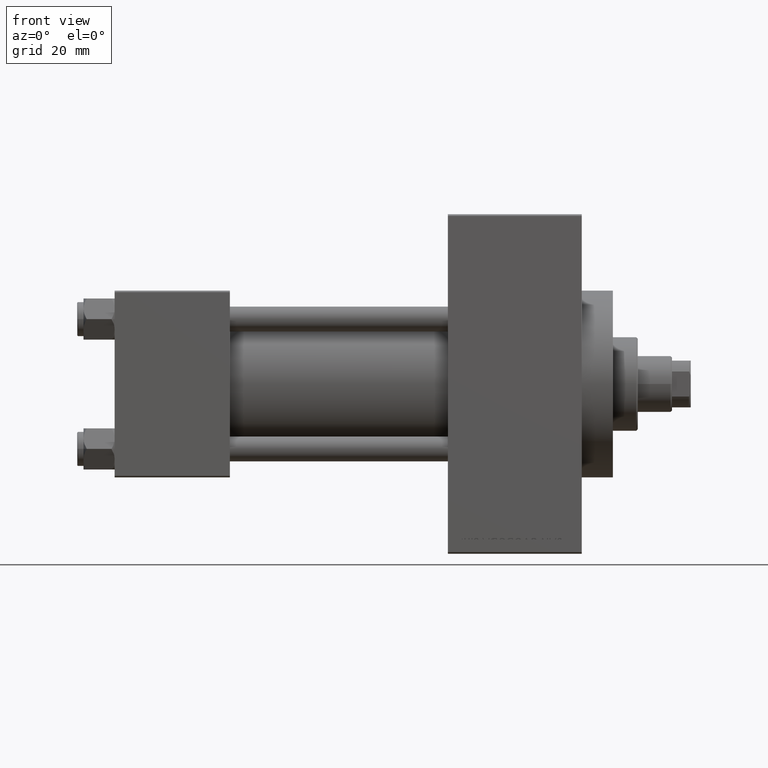
[diagram: clean part render]
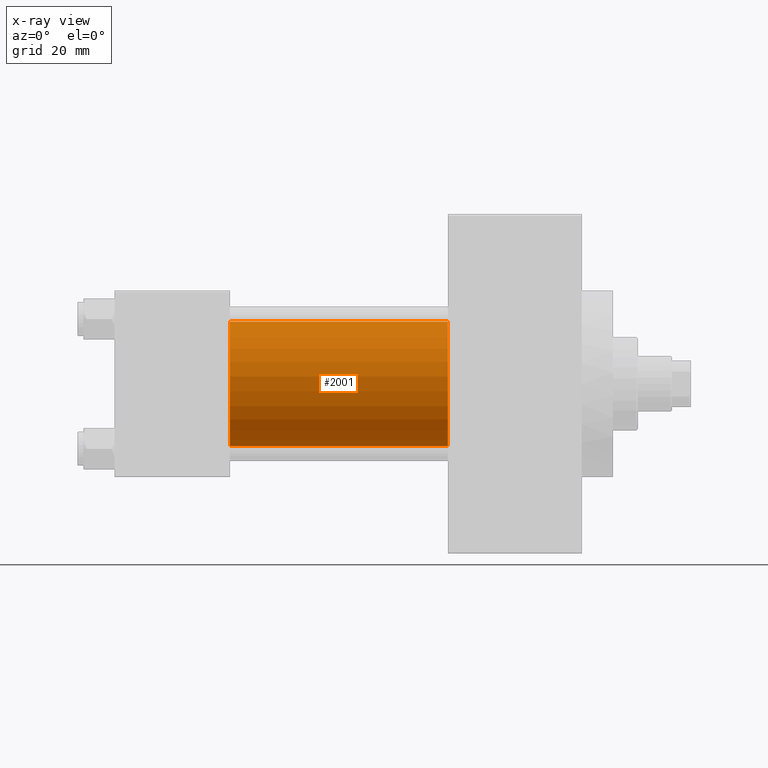
[diagram: x-ray — body ghosted, one internal face saturated and labeled with its STEP entity id]
A machine part, front view, then the same camera in x-ray: the body is ghosted and one INTERNAL B-rep face — a face not visible from any outside direction — is saturated and labeled: STEP entity #2001.
In plain terms, the highlighted cylindrical surface (partial cylindrical patch) has radius 20 mm, axis along (-1, -0, -0).
Its self-contained STEP definition (entity closure, byte-faithful):
#605 = LINE ( 'NONE', #42978, #48116 ) ;
#1467 = VERTEX_POINT ( 'NONE', #45020 ) ;
#2001 = ADVANCED_FACE ( 'NONE', ( #35792 ), #4418, .F. ) ;
#4166 = CARTESIAN_POINT ( 'NONE',  ( 37.00000000000000000, -2.602085213965210642E-15, 20.00000000000000000 ) ) ;
#4418 = CYLINDRICAL_SURFACE ( 'NONE', #6256, 20.00000000000000000 ) ;
#4633 = CIRCLE ( 'NONE', #32477, 20.00000000000000000 ) ;
#4930 = EDGE_CURVE ( 'NONE', #47149, #1467, #4633, .T. ) ;
#5386 = DIRECTION ( 'NONE',  ( -1.000000000000000000, -0.000000000000000000, -0.000000000000000000 ) ) ;
#6256 = AXIS2_PLACEMENT_3D ( 'NONE', #20595, #5386, #12887 ) ;
#8621 = EDGE_CURVE ( 'NONE', #18768, #1467, #34725, .T. ) ;
#9886 = DIRECTION ( 'NONE',  ( 1.000000000000000000, 0.000000000000000000, 0.000000000000000000 ) ) ;
#11808 = DIRECTION ( 'NONE',  ( -1.000000000000000000, -0.000000000000000000, -0.000000000000000000 ) ) ;
#12887 = DIRECTION ( 'NONE',  ( 0.000000000000000000, 0.000000000000000000, 1.000000000000000000 ) ) ;
#18768 = VERTEX_POINT ( 'NONE', #33692 ) ;
#20595 = CARTESIAN_POINT ( 'NONE',  ( 107.0000000000000142, -2.602085213965210642E-15, 0.000000000000000000 ) ) ;
#20930 = DIRECTION ( 'NONE',  ( 1.000000000000000000, 0.000000000000000000, 0.000000000000000000 ) ) ;
#32063 = VECTOR ( 'NONE', #11808, 1000.000000000000000 ) ;
#32216 = CARTESIAN_POINT ( 'NONE',  ( 107.0000000000000142, -2.602085213965210642E-15, 20.00000000000000000 ) ) ;
#32477 = AXIS2_PLACEMENT_3D ( 'NONE', #35645, #20930, #36131 ) ;
#32568 = CARTESIAN_POINT ( 'NONE',  ( 107.0000000000000142, -2.602085213965210642E-15, 0.000000000000000000 ) ) ;
#33559 = EDGE_CURVE ( 'NONE', #37174, #18768, #35900, .T. ) ;
#33692 = CARTESIAN_POINT ( 'NONE',  ( 107.0000000000000142, -1.527916156705042519E-16, -20.00000000000000000 ) ) ;
#34725 = LINE ( 'NONE', #42716, #32063 ) ;
#35126 = ORIENTED_EDGE ( 'NONE', *, *, #46243, .F. ) ;
#35236 = DIRECTION ( 'NONE',  ( -1.000000000000000000, -0.000000000000000000, -0.000000000000000000 ) ) ;
#35645 = CARTESIAN_POINT ( 'NONE',  ( 37.00000000000000000, -2.602085213965210642E-15, 0.000000000000000000 ) ) ;
#35792 = FACE_OUTER_BOUND ( 'NONE', #41169, .T. ) ;
#35900 = CIRCLE ( 'NONE', #40806, 20.00000000000000000 ) ;
#36131 = DIRECTION ( 'NONE',  ( 0.000000000000000000, 0.000000000000000000, -1.000000000000000000 ) ) ;
#36552 = DIRECTION ( 'NONE',  ( 0.000000000000000000, 0.000000000000000000, -1.000000000000000000 ) ) ;
#37174 = VERTEX_POINT ( 'NONE', #32216 ) ;
#37354 = ORIENTED_EDGE ( 'NONE', *, *, #4930, .F. ) ;
#39357 = ORIENTED_EDGE ( 'NONE', *, *, #8621, .T. ) ;
#40806 = AXIS2_PLACEMENT_3D ( 'NONE', #32568, #9886, #36552 ) ;
#41169 = EDGE_LOOP ( 'NONE', ( #42170, #39357, #37354, #35126 ) ) ;
#42170 = ORIENTED_EDGE ( 'NONE', *, *, #33559, .T. ) ;
#42716 = CARTESIAN_POINT ( 'NONE',  ( 107.0000000000000142, -1.527916156705042519E-16, -20.00000000000000000 ) ) ;
#42978 = CARTESIAN_POINT ( 'NONE',  ( 107.0000000000000142, -2.602085213965210642E-15, 20.00000000000000000 ) ) ;
#45020 = CARTESIAN_POINT ( 'NONE',  ( 37.00000000000000000, -1.527916156705042519E-16, -20.00000000000000000 ) ) ;
#46243 = EDGE_CURVE ( 'NONE', #37174, #47149, #605, .T. ) ;
#47149 = VERTEX_POINT ( 'NONE', #4166 ) ;
#48116 = VECTOR ( 'NONE', #35236, 1000.000000000000000 ) ;